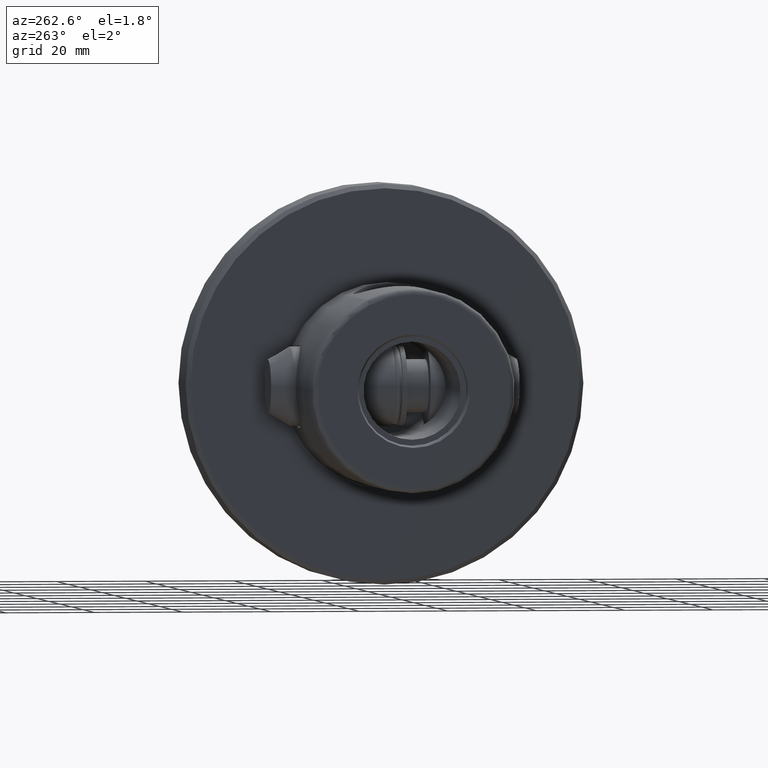
[diagram: clean part render]
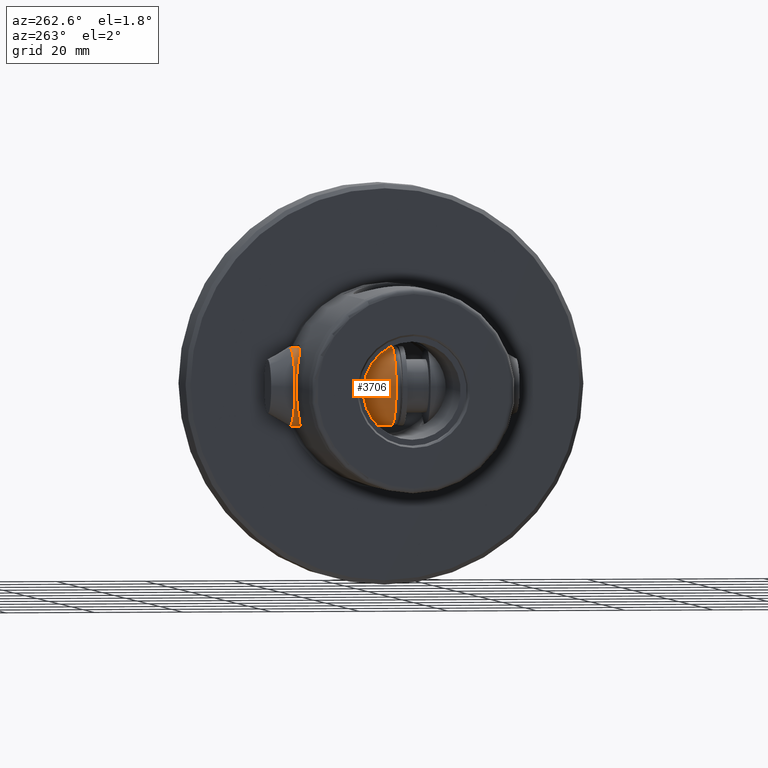
[diagram: same view with one face highlighted and labeled with its STEP entity id]
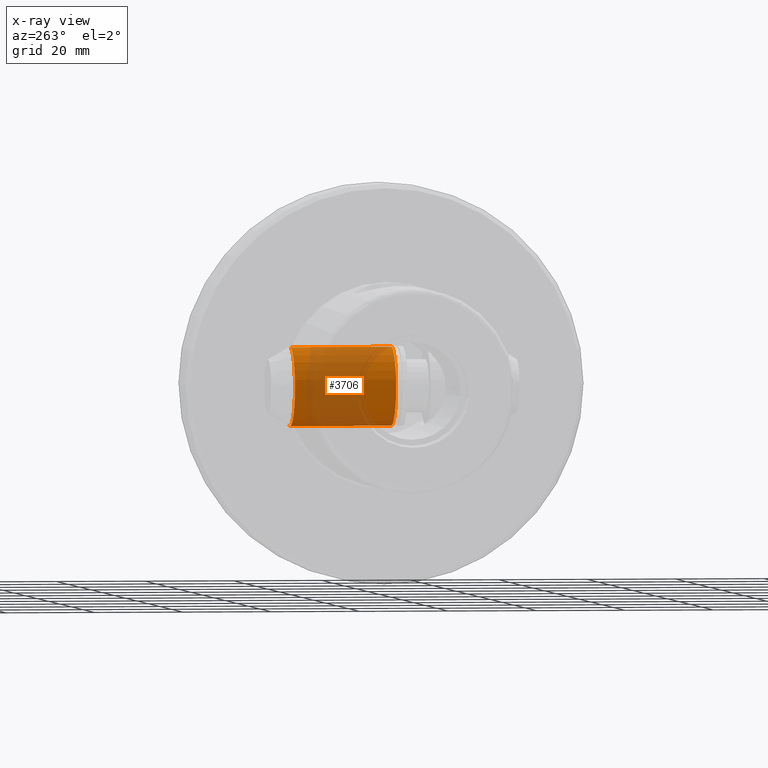
[diagram: x-ray of the same camera — body ghosted, the highlighted face saturated]
A machine part, auxiliary view. The second image highlights one B-rep face of the part: STEP entity #3706.
The next image is the same camera in x-ray: the body ghosted, the highlighted face saturated — about 61% of this face is hidden behind the body in this view.
In plain terms, the highlighted cylindrical surface (partial cylindrical patch) has radius 8.95 mm, axis along (0, -1, 0).
Its self-contained STEP definition (entity closure, byte-faithful):
#24 = CIRCLE ( 'NONE', #5829, 8.949999999999999300 ) ;
#1420 = ORIENTED_EDGE ( 'NONE', *, *, #2471, .T. ) ;
#1606 = FACE_OUTER_BOUND ( 'NONE', #8437, .T. ) ;
#1611 = CYLINDRICAL_SURFACE ( 'NONE', #1892, 8.949999999999999300 ) ;
#1856 = CARTESIAN_POINT ( 'NONE',  ( 28.30000000000000400, 1.096058885236882000E-015, -8.949999999999994000 ) ) ;
#1859 = CARTESIAN_POINT ( 'NONE',  ( 28.30000000000000400, 7.703719777548943400E-031, 8.949999999999994000 ) ) ;
#1892 = AXIS2_PLACEMENT_3D ( 'NONE', #4977, #4988, #4973 ) ;
#2471 = EDGE_CURVE ( 'NONE', #7628, #7600, #5278, .T. ) ;
#2472 = EDGE_CURVE ( 'NONE', #7585, #7608, #5276, .T. ) ;
#2675 = EDGE_CURVE ( 'NONE', #7585, #7628, #24, .T. ) ;
#2923 = EDGE_CURVE ( 'NONE', #7608, #7600, #6516, .T. ) ;
#3204 = DIRECTION ( 'NONE',  ( 0.0000000000000000000, -1.000000000000000000, 0.0000000000000000000 ) ) ;
#3205 = DIRECTION ( 'NONE',  ( -1.000000000000000000, -1.736302482672550400E-016, -0.0000000000000000000 ) ) ;
#3213 = CARTESIAN_POINT ( 'NONE',  ( 28.30000000000000400, 4.913736025963319000E-015, 0.0000000000000000000 ) ) ;
#3706 = ADVANCED_FACE ( 'NONE', ( #1606 ), #1611, .T. ) ;
#4156 = CARTESIAN_POINT ( 'NONE',  ( 51.19999999999996000, 1.096058885236881000E-015, -8.949999999999999300 ) ) ;
#4516 = ORIENTED_EDGE ( 'NONE', *, *, #2923, .F. ) ;
#4519 = ORIENTED_EDGE ( 'NONE', *, *, #2675, .T. ) ;
#4805 = DIRECTION ( 'NONE',  ( 0.0000000000000000000, 0.0000000000000000000, -1.000000000000000000 ) ) ;
#4806 = DIRECTION ( 'NONE',  ( -1.000000000000000000, 0.0000000000000000000, 0.0000000000000000000 ) ) ;
#4813 = CARTESIAN_POINT ( 'NONE',  ( 51.19999999999996000, 0.0000000000000000000, 0.0000000000000000000 ) ) ;
#4973 = DIRECTION ( 'NONE',  ( 0.0000000000000000000, 0.0000000000000000000, 1.000000000000000000 ) ) ;
#4977 = CARTESIAN_POINT ( 'NONE',  ( 56.20000000000000300, 0.0000000000000000000, 0.0000000000000000000 ) ) ;
#4988 = DIRECTION ( 'NONE',  ( -1.000000000000000000, -0.0000000000000000000, -0.0000000000000000000 ) ) ;
#5098 = CARTESIAN_POINT ( 'NONE',  ( 51.19999999999996000, 0.0000000000000000000, 8.949999999999999300 ) ) ;
#5276 = LINE ( 'NONE', #6454, #5288 ) ;
#5278 = LINE ( 'NONE', #7789, #5284 ) ;
#5284 = VECTOR ( 'NONE', #7888, 1000.000000000000000 ) ;
#5288 = VECTOR ( 'NONE', #6451, 1000.000000000000000 ) ;
#5829 = AXIS2_PLACEMENT_3D ( 'NONE', #4813, #4806, #4805 ) ;
#5947 = AXIS2_PLACEMENT_3D ( 'NONE', #3213, #3205, #3204 ) ;
#6451 = DIRECTION ( 'NONE',  ( -1.000000000000000000, -0.0000000000000000000, -0.0000000000000000000 ) ) ;
#6454 = CARTESIAN_POINT ( 'NONE',  ( 56.20000000000000300, 0.0000000000000000000, 8.949999999999999300 ) ) ;
#6516 = CIRCLE ( 'NONE', #5947, 8.949999999999994000 ) ;
#6879 = ORIENTED_EDGE ( 'NONE', *, *, #2472, .F. ) ;
#7585 = VERTEX_POINT ( 'NONE', #5098 ) ;
#7600 = VERTEX_POINT ( 'NONE', #1856 ) ;
#7608 = VERTEX_POINT ( 'NONE', #1859 ) ;
#7628 = VERTEX_POINT ( 'NONE', #4156 ) ;
#7789 = CARTESIAN_POINT ( 'NONE',  ( 56.20000000000000300, 1.096058885236881000E-015, -8.949999999999999300 ) ) ;
#7888 = DIRECTION ( 'NONE',  ( -1.000000000000000000, -0.0000000000000000000, -0.0000000000000000000 ) ) ;
#8437 = EDGE_LOOP ( 'NONE', ( #4519, #1420, #4516, #6879 ) ) ;